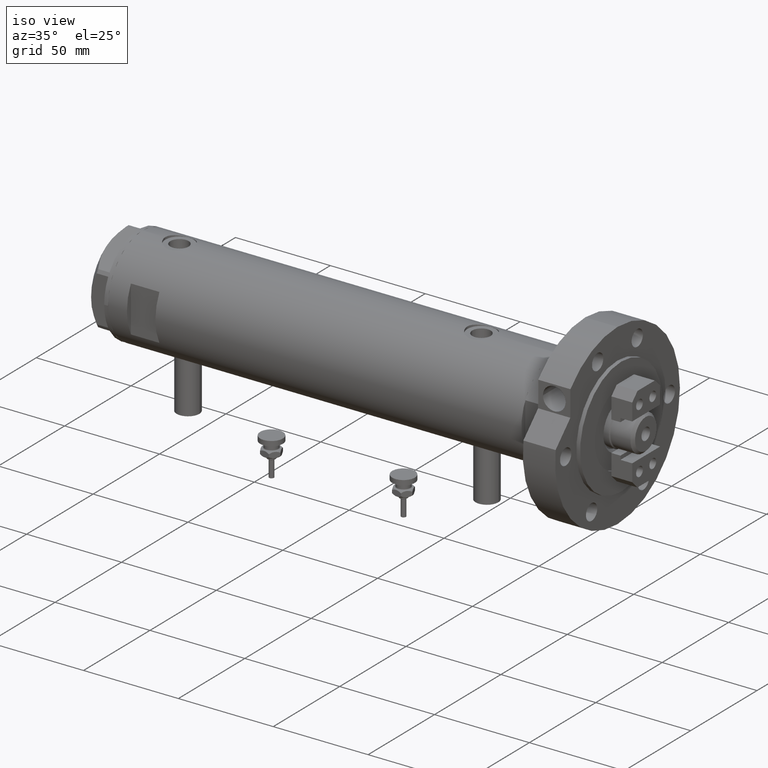
[diagram: clean part render]
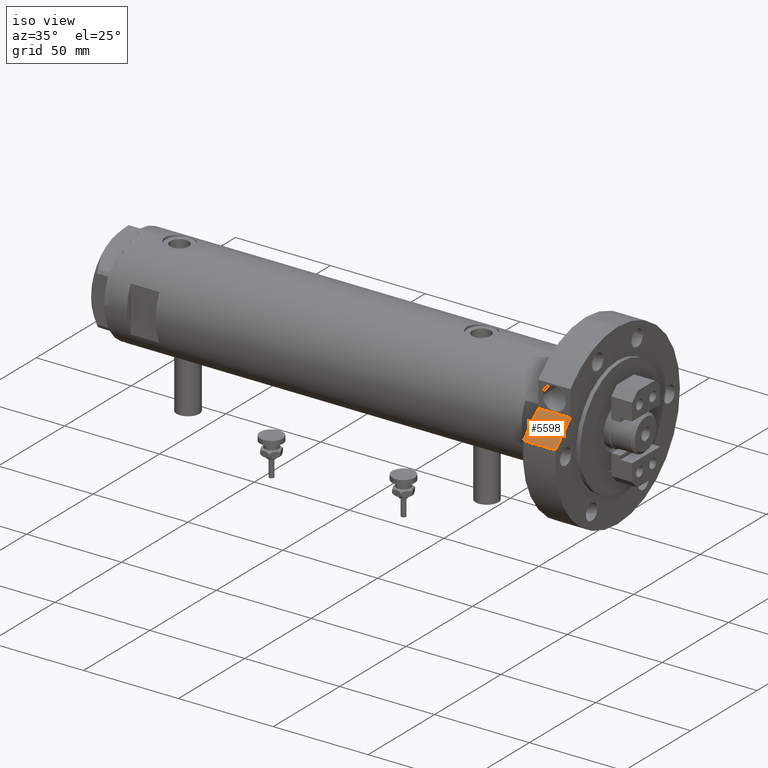
[diagram: same view with one face highlighted and labeled with its STEP entity id]
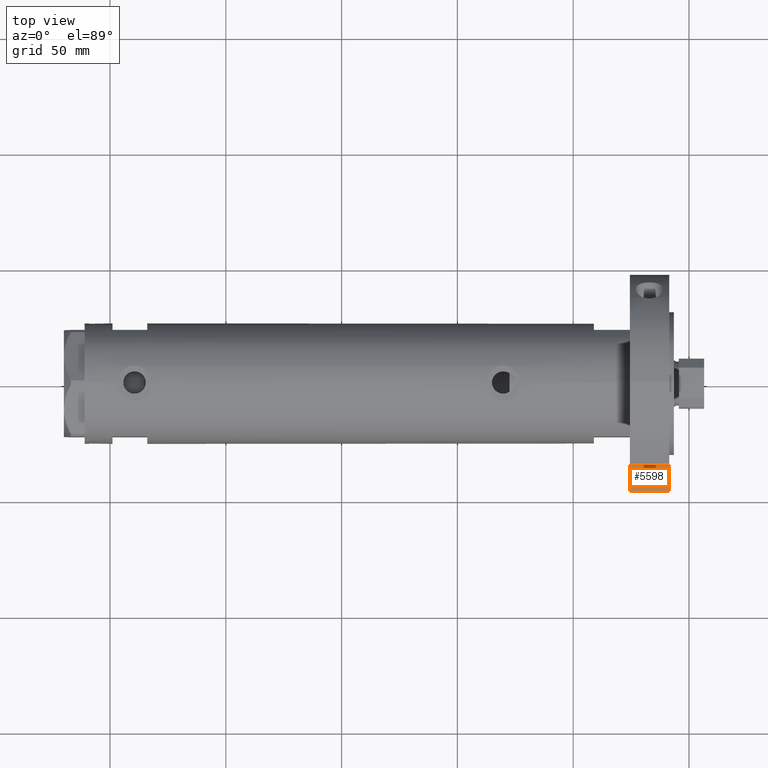
[diagram: same view with one face highlighted and labeled with its STEP entity id]
A machine part, iso view. The second image highlights one B-rep face of the part: STEP entity #5598.
A second angle (top view) of the same face is appended — the face is thin or edge-on in the first view.
In plain terms, the highlighted planar face has unit normal (-0, 0.7071, -0.7071).
Its self-contained STEP definition (entity closure, byte-faithful):
#521 = VERTEX_POINT ( 'NONE', #826 ) ;
#826 = CARTESIAN_POINT ( 'NONE',  ( 17.22217135699460755, 35.47361286101150313, 0.000000000000000000 ) ) ;
#1067 = EDGE_CURVE ( 'NONE', #4774, #7907, #4710, .T. ) ;
#1368 = CARTESIAN_POINT ( 'NONE',  ( 17.22217135699461110, 35.47361286101150313, 0.000000000000000000 ) ) ;
#1422 = EDGE_LOOP ( 'NONE', ( #4311, #5367, #4654, #6125 ) ) ;
#1627 = VECTOR ( 'NONE', #4933, 999.9999999999998863 ) ;
#1982 = FACE_OUTER_BOUND ( 'NONE', #1422, .T. ) ;
#2347 = AXIS2_PLACEMENT_3D ( 'NONE', #1368, #6821, #5325 ) ;
#2518 = CARTESIAN_POINT ( 'NONE',  ( 17.22217135699461110, 35.47361286101150313, 0.000000000000000000 ) ) ;
#2552 = CARTESIAN_POINT ( 'NONE',  ( 6.092310621118299352, 46.60347359688769586, 0.000000000000000000 ) ) ;
#2768 = DIRECTION ( 'NONE',  ( -0.000000000000000000, -0.000000000000000000, 1.000000000000000000 ) ) ;
#2799 = CARTESIAN_POINT ( 'NONE',  ( 6.092310621118299352, 46.60347359688769586, 17.00000000000000000 ) ) ;
#2837 = EDGE_CURVE ( 'NONE', #4774, #521, #3524, .T. ) ;
#3427 = VECTOR ( 'NONE', #2768, 1000.000000000000000 ) ;
#3524 = LINE ( 'NONE', #8267, #1627 ) ;
#3901 = VERTEX_POINT ( 'NONE', #8563 ) ;
#4311 = ORIENTED_EDGE ( 'NONE', *, *, #7833, .T. ) ;
#4654 = ORIENTED_EDGE ( 'NONE', *, *, #2837, .F. ) ;
#4710 = LINE ( 'NONE', #8656, #3427 ) ;
#4774 = VERTEX_POINT ( 'NONE', #2552 ) ;
#4786 = PLANE ( 'NONE',  #2347 ) ;
#4827 = VECTOR ( 'NONE', #5211, 999.9999999999998863 ) ;
#4933 = DIRECTION ( 'NONE',  ( 0.7071067811865511255, -0.7071067811865440200, -0.000000000000000000 ) ) ;
#5191 = DIRECTION ( 'NONE',  ( -0.000000000000000000, -0.000000000000000000, 1.000000000000000000 ) ) ;
#5211 = DIRECTION ( 'NONE',  ( 0.7071067811865511255, -0.7071067811865440200, 0.000000000000000000 ) ) ;
#5325 = DIRECTION ( 'NONE',  ( 0.7071067811865511255, -0.7071067811865440200, 0.000000000000000000 ) ) ;
#5367 = ORIENTED_EDGE ( 'NONE', *, *, #6749, .F. ) ;
#5598 = ADVANCED_FACE ( 'NONE', ( #1982 ), #4786, .F. ) ;
#6125 = ORIENTED_EDGE ( 'NONE', *, *, #1067, .T. ) ;
#6578 = LINE ( 'NONE', #2518, #6796 ) ;
#6749 = EDGE_CURVE ( 'NONE', #521, #3901, #6578, .T. ) ;
#6796 = VECTOR ( 'NONE', #5191, 1000.000000000000000 ) ;
#6821 = DIRECTION ( 'NONE',  ( -0.7071067811865440200, -0.7071067811865511255, 0.000000000000000000 ) ) ;
#7193 = LINE ( 'NONE', #8495, #4827 ) ;
#7833 = EDGE_CURVE ( 'NONE', #7907, #3901, #7193, .T. ) ;
#7907 = VERTEX_POINT ( 'NONE', #2799 ) ;
#8267 = CARTESIAN_POINT ( 'NONE',  ( 17.22217135699461110, 35.47361286101150313, 0.000000000000000000 ) ) ;
#8495 = CARTESIAN_POINT ( 'NONE',  ( 26.34789210900296652, 26.34789210900323297, 17.00000000000000000 ) ) ;
#8563 = CARTESIAN_POINT ( 'NONE',  ( 17.22217135699461110, 35.47361286101150313, 17.00000000000000000 ) ) ;
#8656 = CARTESIAN_POINT ( 'NONE',  ( 6.092310621118299352, 46.60347359688769586, 0.000000000000000000 ) ) ;